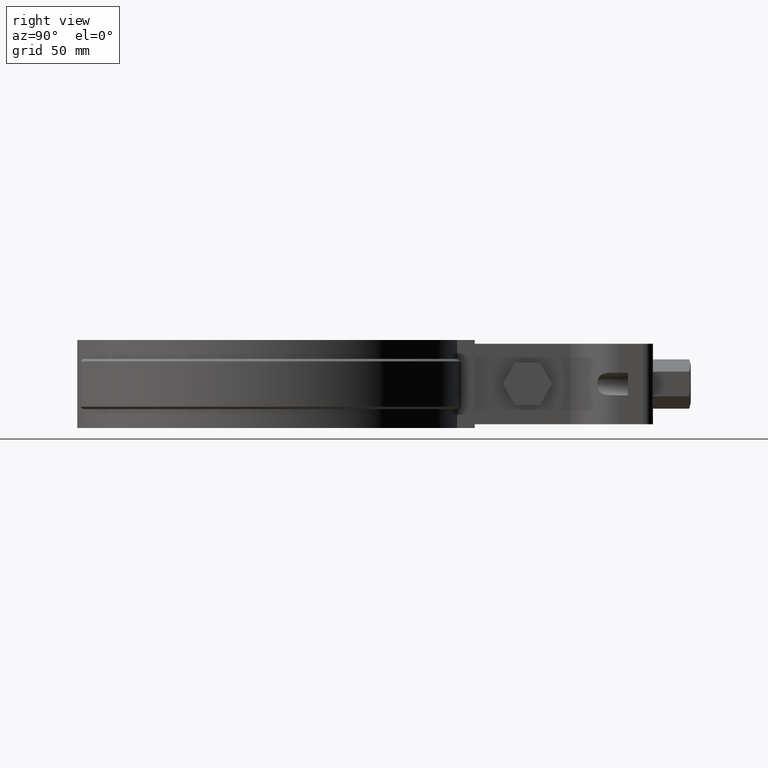
[diagram: clean part render]
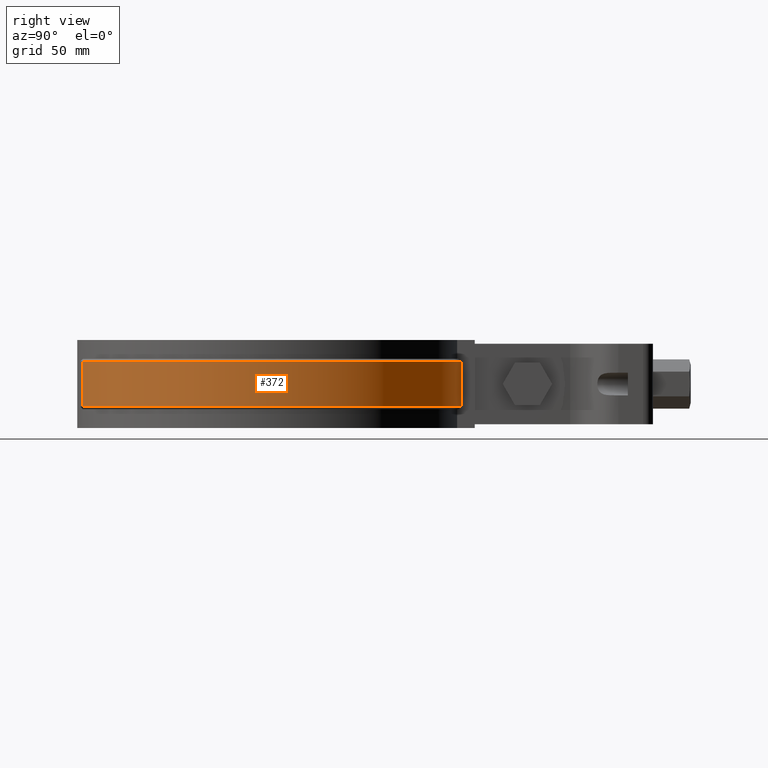
[diagram: same view with one face highlighted and labeled with its STEP entity id]
A machine part, right view. The second image highlights one B-rep face of the part: STEP entity #372.
In plain terms, the highlighted cylindrical surface (partial cylindrical patch) has radius 77.4 mm, axis along (0, 0, -1).
Its self-contained STEP definition (entity closure, byte-faithful):
#372 = ADVANCED_FACE( '', ( #617 ), #618, .T. );
#617 = FACE_OUTER_BOUND( '', #1752, .T. );
#618 = CYLINDRICAL_SURFACE( '', #1753, 77.4000000000000 );
#1752 = EDGE_LOOP( '', ( #3631, #3632, #3633, #3634 ) );
#1753 = AXIS2_PLACEMENT_3D( '', #3635, #3636, #3637 );
#3631 = ORIENTED_EDGE( '', *, *, #5046, .T. );
#3632 = ORIENTED_EDGE( '', *, *, #5146, .T. );
#3633 = ORIENTED_EDGE( '', *, *, #5149, .F. );
#3634 = ORIENTED_EDGE( '', *, *, #5134, .T. );
#3635 = CARTESIAN_POINT( '', ( 6.93889390390723E-015, -2.77555756156289E-014, -26.0000000000000 ) );
#3636 = DIRECTION( '', ( 0.000000000000000, 0.000000000000000, -1.00000000000000 ) );
#3637 = DIRECTION( '', ( 0.306337160039884, -0.951923076923077, 0.000000000000000 ) );
#5046 = EDGE_CURVE( '', #5574, #5575, #5576, .T. );
#5134 = EDGE_CURVE( '', #5729, #5574, #5730, .T. );
#5146 = EDGE_CURVE( '', #5575, #5743, #5747, .F. );
#5149 = EDGE_CURVE( '', #5729, #5743, #5750, .T. );
#5574 = VERTEX_POINT( '', #7279 );
#5575 = VERTEX_POINT( '', #7280 );
#5576 = LINE( '', #7281, #7282 );
#5729 = VERTEX_POINT( '', #8274 );
#5730 = CIRCLE( '', #8275, 77.4000000000000 );
#5743 = VERTEX_POINT( '', #8292 );
#5747 = CIRCLE( '', #8297, 77.4000000000000 );
#5750 = LINE( '', #8302, #8303 );
#7279 = CARTESIAN_POINT( '', ( 8.39999999999995, 76.9428359238208, -25.0000000000000 ) );
#7280 = CARTESIAN_POINT( '', ( 8.39999999999995, 76.9428359238208, -7.00000000000001 ) );
#7281 = CARTESIAN_POINT( '', ( 8.39999999999995, 76.9428359238208, -26.0000000000000 ) );
#7282 = VECTOR( '', #9370, 1000.00000000000 );
#8274 = CARTESIAN_POINT( '', ( 23.7104961870871, -73.6788461538462, -25.0000000000000 ) );
#8275 = AXIS2_PLACEMENT_3D( '', #9470, #9471, #9472 );
#8292 = CARTESIAN_POINT( '', ( 23.7104961870871, -73.6788461538462, -7.00000000000001 ) );
#8297 = AXIS2_PLACEMENT_3D( '', #9496, #9497, #9498 );
#8302 = CARTESIAN_POINT( '', ( 23.7104961870871, -73.6788461538462, -26.0000000000000 ) );
#8303 = VECTOR( '', #9501, 1000.00000000000 );
#9370 = DIRECTION( '', ( 0.000000000000000, 0.000000000000000, 1.00000000000000 ) );
#9470 = CARTESIAN_POINT( '', ( 6.93889390390723E-015, -2.77555756156289E-014, -25.0000000000000 ) );
#9471 = DIRECTION( '', ( 0.000000000000000, 0.000000000000000, 1.00000000000000 ) );
#9472 = DIRECTION( '', ( 1.00000000000000, 0.000000000000000, 0.000000000000000 ) );
#9496 = CARTESIAN_POINT( '', ( 6.93889390390723E-015, -2.77555756156289E-014, -7.00000000000000 ) );
#9497 = DIRECTION( '', ( 0.000000000000000, 0.000000000000000, 1.00000000000000 ) );
#9498 = DIRECTION( '', ( 1.00000000000000, 0.000000000000000, 0.000000000000000 ) );
#9501 = DIRECTION( '', ( 0.000000000000000, 0.000000000000000, 1.00000000000000 ) );